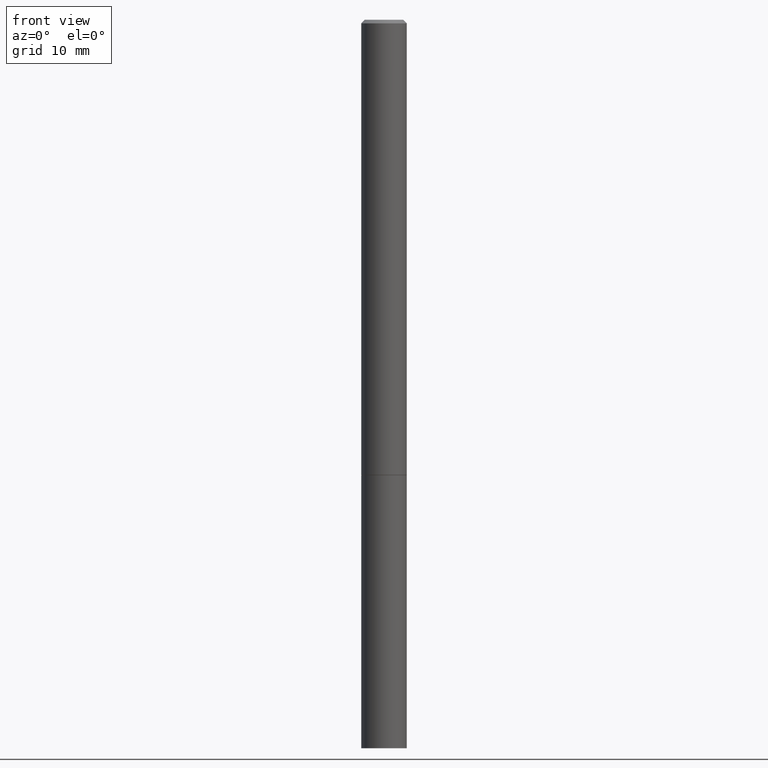
[diagram: clean part render]
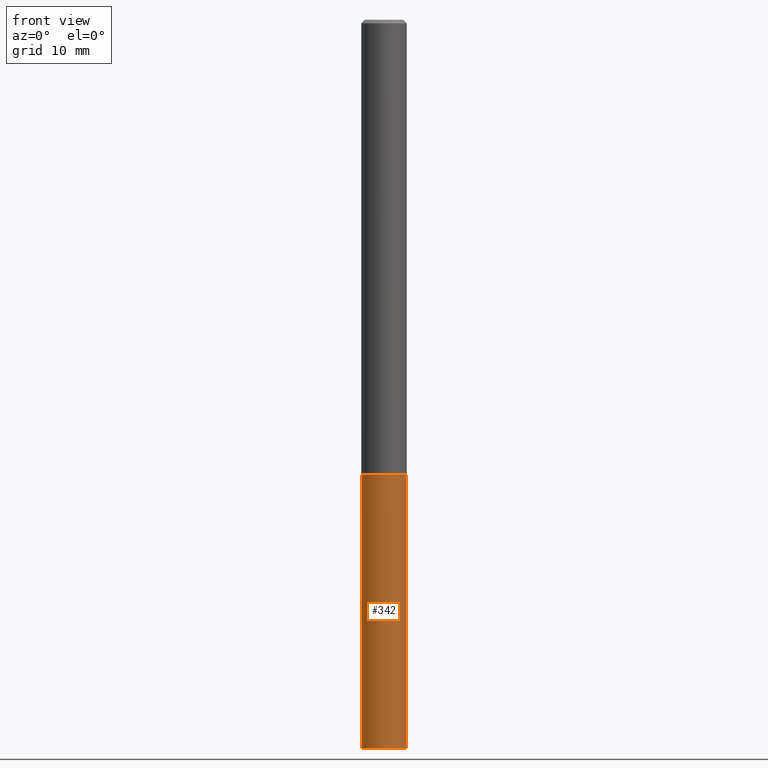
[diagram: same view with one face highlighted and labeled with its STEP entity id]
A machine part, front view. The second image highlights one B-rep face of the part: STEP entity #342.
In plain terms, the highlighted cylindrical surface (edge-blend (fillet) strip) has radius 3.175 mm, axis along (-0, 0, 1).
Its self-contained STEP definition (entity closure, byte-faithful):
#3 = VERTEX_POINT ( 'NONE', #280 ) ;
#6 = EDGE_LOOP ( 'NONE', ( #110, #144, #49, #292 ) ) ;
#7 = CARTESIAN_POINT ( 'NONE',  ( 0.1250000000000000000, -8.728703347107833388E-16, 6.095220969744919741E-30 ) ) ;
#32 = CARTESIAN_POINT ( 'NONE',  ( 9.781875224740546387E-29, -1.396592535537258233E-14, -4.000000000000000000 ) ) ;
#33 = CARTESIAN_POINT ( 'NONE',  ( -0.1250000000000000000, -1.045913593154009919E-14, -4.000000000000000000 ) ) ;
#37 = CARTESIAN_POINT ( 'NONE',  ( -0.1250000000000000000, -1.045913593154009919E-14, -2.500000000000000000 ) ) ;
#49 = ORIENTED_EDGE ( 'NONE', *, *, #207, .T. ) ;
#66 = LINE ( 'NONE', #143, #72 ) ;
#67 = DIRECTION ( 'NONE',  ( -2.445468806185136597E-29, 3.491481338843145583E-15, 1.000000000000000000 ) ) ;
#72 = VECTOR ( 'NONE', #150, 39.37007874015748143 ) ;
#77 = AXIS2_PLACEMENT_3D ( 'NONE', #121, #180, #155 ) ;
#99 = VERTEX_POINT ( 'NONE', #37 ) ;
#110 = ORIENTED_EDGE ( 'NONE', *, *, #190, .F. ) ;
#121 = CARTESIAN_POINT ( 'NONE',  ( 6.113672015462842613E-29, -8.728703347107864943E-15, -2.500000000000000000 ) ) ;
#126 = EDGE_CURVE ( 'NONE', #99, #3, #132, .T. ) ;
#132 = CIRCLE ( 'NONE', #77, 0.1250000000000000000 ) ;
#139 = AXIS2_PLACEMENT_3D ( 'NONE', #168, #67, #179 ) ;
#143 = CARTESIAN_POINT ( 'NONE',  ( -0.1250000000000000000, 8.881784197001252323E-16, -6.148668862818632227E-30 ) ) ;
#144 = ORIENTED_EDGE ( 'NONE', *, *, #288, .T. ) ;
#150 = DIRECTION ( 'NONE',  ( -2.445468806185136877E-29, 3.491481338843145188E-15, 1.000000000000000000 ) ) ;
#155 = DIRECTION ( 'NONE',  ( 1.000000000000000000, -6.982962677686270655E-15, 0.000000000000000000 ) ) ;
#168 = CARTESIAN_POINT ( 'NONE',  ( 0.000000000000000000, 0.000000000000000000, 0.000000000000000000 ) ) ;
#173 = VERTEX_POINT ( 'NONE', #327 ) ;
#177 = VERTEX_POINT ( 'NONE', #33 ) ;
#179 = DIRECTION ( 'NONE',  ( 1.000000000000000000, -6.982962677686266711E-15, 4.876176775795935793E-29 ) ) ;
#180 = DIRECTION ( 'NONE',  ( -2.445468806185136597E-29, 3.491481338843145583E-15, 1.000000000000000000 ) ) ;
#190 = EDGE_CURVE ( 'NONE', #177, #99, #66, .T. ) ;
#206 = CYLINDRICAL_SURFACE ( 'NONE', #139, 0.1250000000000000000 ) ;
#207 = EDGE_CURVE ( 'NONE', #173, #3, #261, .T. ) ;
#230 = DIRECTION ( 'NONE',  ( -2.445468806185136877E-29, 3.491481338843145188E-15, 1.000000000000000000 ) ) ;
#261 = LINE ( 'NONE', #7, #345 ) ;
#262 = AXIS2_PLACEMENT_3D ( 'NONE', #32, #359, #296 ) ;
#280 = CARTESIAN_POINT ( 'NONE',  ( 0.1250000000000000000, -9.601573681818648281E-15, -2.500000000000000000 ) ) ;
#288 = EDGE_CURVE ( 'NONE', #177, #173, #306, .T. ) ;
#292 = ORIENTED_EDGE ( 'NONE', *, *, #126, .F. ) ;
#296 = DIRECTION ( 'NONE',  ( 1.000000000000000000, -6.982962677686262766E-15, 0.000000000000000000 ) ) ;
#306 = CIRCLE ( 'NONE', #262, 0.1250000000000000000 ) ;
#327 = CARTESIAN_POINT ( 'NONE',  ( 0.1250000000000000000, -1.483879569008336409E-14, -4.000000000000000000 ) ) ;
#342 = ADVANCED_FACE ( 'NONE', ( #354 ), #206, .T. ) ;
#345 = VECTOR ( 'NONE', #230, 39.37007874015748143 ) ;
#354 = FACE_OUTER_BOUND ( 'NONE', #6, .T. ) ;
#359 = DIRECTION ( 'NONE',  ( -2.445468806185136597E-29, 3.491481338843145583E-15, 1.000000000000000000 ) ) ;